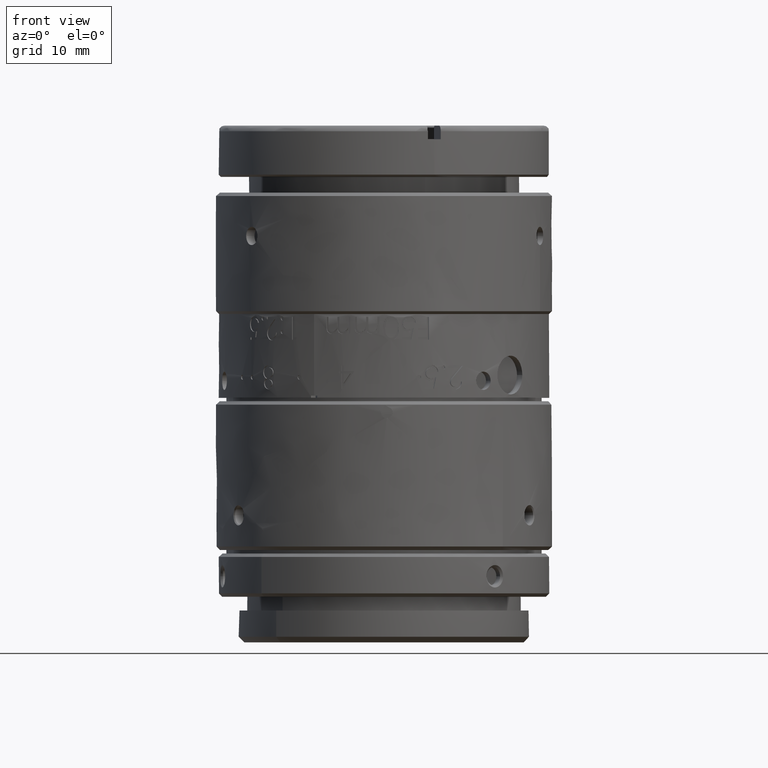
[diagram: clean part render]
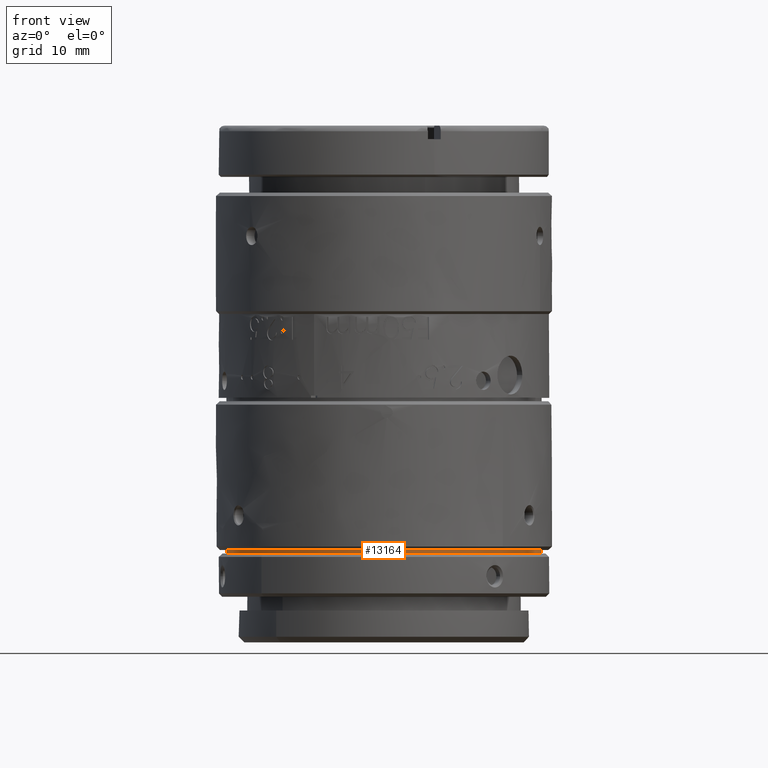
[diagram: same view with one face highlighted and labeled with its STEP entity id]
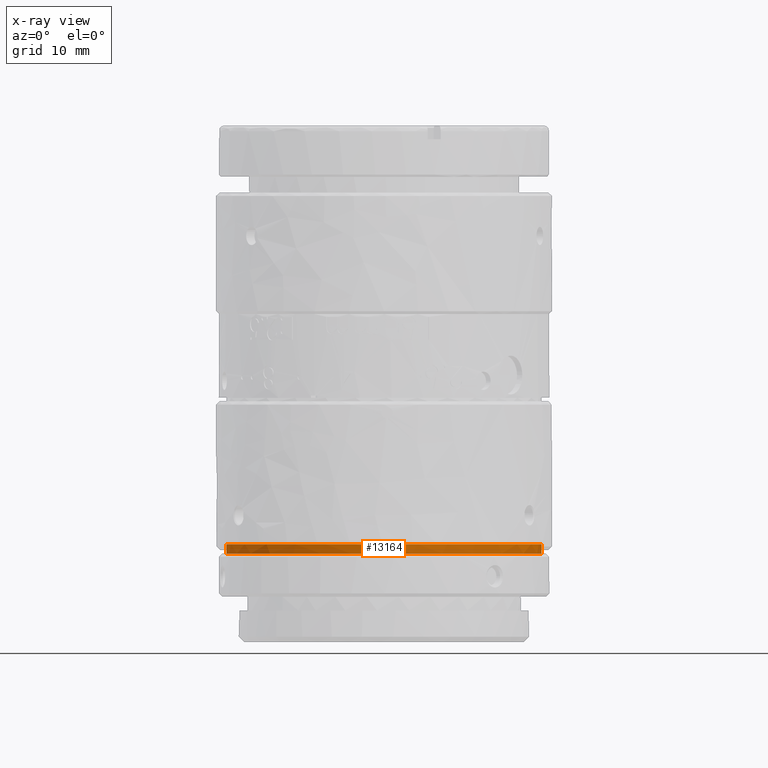
[diagram: x-ray of the same camera — body ghosted, the highlighted face saturated]
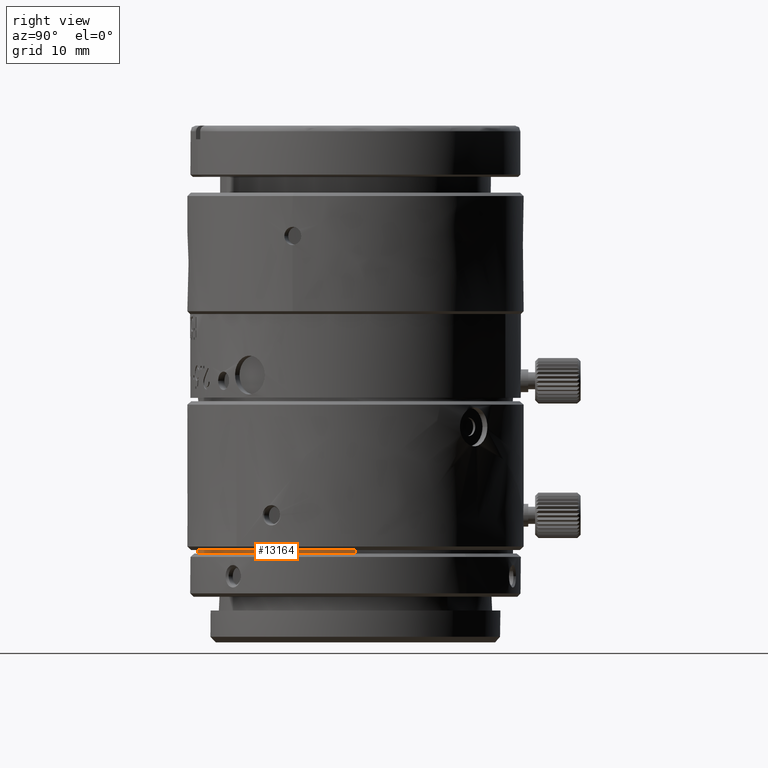
[diagram: same view with one face highlighted and labeled with its STEP entity id]
A machine part, front view. The second image highlights one B-rep face of the part: STEP entity #13164.
The next image is the same camera in x-ray: the body ghosted, the highlighted face saturated — about 0% of this face is hidden behind the body in this view.
A second angle (right view) of the same face is appended — the face is thin or edge-on in the first view.
In plain terms, the highlighted face is a freeform B-spline surface patch.
Its self-contained STEP definition (entity closure, byte-faithful):
#589 = CARTESIAN_POINT ( 'NONE',  ( 13.82029815274901097, -1.810527232057803637, -13.03400299199999957 ) ) ;
#1340 = CARTESIAN_POINT ( 'NONE',  ( -13.82029810966163907, -27.64059623633080776, -12.22400299199999907 ) ) ;
#1531 = CARTESIAN_POINT ( 'NONE',  ( 13.82029812100000044, -3.384996772072244681E-15, -12.22400299200000084 ) ) ;
#1917 = FACE_OUTER_BOUND ( 'NONE', #32240, .T. ) ;
#2273 = CARTESIAN_POINT ( 'NONE',  ( -13.82029811722807899, -3.779454036961450059E-09, -12.22400299200000084 ) ) ;
#2752 = CARTESIAN_POINT ( 'NONE',  ( 12.07543183483454463, -6.961508158523174394, -13.03400299199999957 ) ) ;
#2937 = CARTESIAN_POINT ( 'NONE',  ( 6.961508207770102707, -12.07543176813295993, -13.03400299200000134 ) ) ;
#3374 = CARTESIAN_POINT ( 'NONE',  ( 1.810527232621758520, -13.82029816311509407, -12.22400299200000084 ) ) ;
#4543 = CARTESIAN_POINT ( 'NONE',  ( 13.82029811929229979, -1.353493768880836097E-09, -13.03400299200000134 ) ) ;
#5352 = CARTESIAN_POINT ( 'NONE',  ( 13.82029811722807899, -8.273123845374130825E-10, -12.22400299200000084 ) ) ;
#6475 = CARTESIAN_POINT ( 'NONE',  ( 8.492190455409788896, -11.05266258910301325, -12.22400299200000084 ) ) ;
#7037 = CARTESIAN_POINT ( 'NONE',  ( 13.46114929263155702, -3.616090095877642963, -12.22400299200000084 ) ) ;
#7269 = B_SPLINE_CURVE_WITH_KNOTS ( 'NONE', 1,
 ( #29885, #34988 ),
 .UNSPECIFIED., .F., .F.,
 ( 2, 2 ),
 ( -1.000000000000000000, 0.0000000000000000000 ),
 .UNSPECIFIED. ) ;
#7349 = CARTESIAN_POINT ( 'NONE',  ( 13.82029812099999333, -27.64059623066163240, -12.22400299199999907 ) ) ;
#8725 = B_SPLINE_CURVE_WITH_KNOTS ( 'NONE', 3,
 ( #13068, #24501, #21219, #19054, #9960, #27790, #21783, #12501, #15406, #3374, #30323, #9583, #6475, #36331, #36712, #7037, #9770, #18865 ),
 .UNSPECIFIED., .F., .F.,
 ( 4, 2, 2, 2, 2, 2, 2, 2, 4 ),
 ( 3.141592653589795336, 3.534291735288519920, 3.926990816987244060, 4.319689898685968643, 4.712388980384693227, 5.105088062083417810, 5.497787143782142394, 5.890486225480866089, 6.283185307179590673 ),
 .UNSPECIFIED. ) ;
#9583 = CARTESIAN_POINT ( 'NONE',  ( 6.961508146707862110, -12.07543175754245723, -12.22400299200000084 ) ) ;
#9591 = ORIENTED_EDGE ( 'NONE', *, *, #32176, .F. ) ;
#9770 = CARTESIAN_POINT ( 'NONE',  ( 13.82029816311509940, -1.810527232621692129, -12.22400299200000084 ) ) ;
#9903 = CARTESIAN_POINT ( 'NONE',  ( -13.82029812100000044, -5.669181055442177571E-09, -12.22400299200000084 ) ) ;
#9960 = CARTESIAN_POINT ( 'NONE',  ( -11.05266258910302390, -8.492190455409778238, -12.22400299200000084 ) ) ;
#10030 = CARTESIAN_POINT ( 'NONE',  ( 13.82029811722807899, -8.273123845374130825E-10, -12.22400299200000084 ) ) ;
#10654 = B_SPLINE_CURVE_WITH_KNOTS ( 'NONE', 3,
 ( #26416, #589, #35329, #2752, #14593, #14967, #2937, #24075, #12447, #26794, #14771, #17693, #36083, #32801, #21353, #33170, #17502, #12074 ),
 .UNSPECIFIED., .F., .F.,
 ( 4, 2, 2, 2, 2, 2, 2, 2, 4 ),
 ( 0.0000000000000000000, 0.3926990816987244171, 0.7853981633974488341, 1.178097245096173307, 1.570796326794897668, 1.963495408493622030, 2.356194490192346613, 2.748893571891070753, 3.141592653589795336 ),
 .UNSPECIFIED. ) ;
#10861 = ORIENTED_EDGE ( 'NONE', *, *, #33290, .F. ) ;
#12074 = CARTESIAN_POINT ( 'NONE',  ( -13.82029811929229979, -3.253272652618029837E-09, -13.03400299200000134 ) ) ;
#12204 = CARTESIAN_POINT ( 'NONE',  ( 13.82029811929229979, -1.353493768880836097E-09, -13.03400299200000134 ) ) ;
#12447 = CARTESIAN_POINT ( 'NONE',  ( 1.810527228900692398, -13.82029807900481266, -13.03400299200000312 ) ) ;
#12501 = CARTESIAN_POINT ( 'NONE',  ( -3.616090095877700694, -13.46114929263153037, -12.22400299200000084 ) ) ;
#13068 = CARTESIAN_POINT ( 'NONE',  ( -13.82029811722807899, -3.779454036961450059E-09, -12.22400299200000084 ) ) ;
#13164 = ADVANCED_FACE ( 'NONE', ( #1917 ), #13205, .F. ) ;
#13205 =( BOUNDED_SURFACE ( )  B_SPLINE_SURFACE ( 1, 3, ( 
 ( #22095, #27920, #31201, #33923 ),
 ( #9903, #1340, #7349, #1531 ) ),
 .UNSPECIFIED., .F., .F., .T. ) 
 B_SPLINE_SURFACE_WITH_KNOTS ( ( 2, 2 ),
 ( 4, 4 ),
 ( 0.0000000000000000000, 1.000000000000000000 ),
 ( 0.0000000000000000000, 1.000000000000000000 ),
 .UNSPECIFIED. ) 
 GEOMETRIC_REPRESENTATION_ITEM ( )  RATIONAL_B_SPLINE_SURFACE ( (
 ( 1.000000000000000000, 0.3333333334700690487, 0.3333333334700690487, 1.000000000000000000),
 ( 1.000000000000000000, 0.3333333334700690487, 0.3333333334700690487, 1.000000000000000000) ) ) 
 REPRESENTATION_ITEM ( '' )  SURFACE ( )  );
#14189 = EDGE_CURVE ( 'NONE', #26625, #36512, #26790, .T. ) ;
#14593 = CARTESIAN_POINT ( 'NONE',  ( 11.05266263453508380, -8.492190449468209223, -13.03400299200000312 ) ) ;
#14771 = CARTESIAN_POINT ( 'NONE',  ( -3.616090073571344821, -13.46114929000522409, -13.03400299200000134 ) ) ;
#14967 = CARTESIAN_POINT ( 'NONE',  ( 8.492190406667322833, -11.05266259037469112, -13.03400299200000134 ) ) ;
#15406 = CARTESIAN_POINT ( 'NONE',  ( -1.810527232621759186, -13.82029805625335150, -12.22400299200000084 ) ) ;
#17502 = CARTESIAN_POINT ( 'NONE',  ( -13.82029807900481089, -1.810527228900635333, -13.03400299200000312 ) ) ;
#17693 = CARTESIAN_POINT ( 'NONE',  ( -6.961508158523217915, -12.07543183483453042, -13.03400299199999957 ) ) ;
#18865 = CARTESIAN_POINT ( 'NONE',  ( 13.82029811722807899, -8.273123845374130825E-10, -12.22400299200000084 ) ) ;
#19054 = CARTESIAN_POINT ( 'NONE',  ( -12.07543175754244480, -6.961508146707898526, -12.22400299199999552 ) ) ;
#19360 = EDGE_CURVE ( 'NONE', #21463, #30980, #7269, .T. ) ;
#21219 = CARTESIAN_POINT ( 'NONE',  ( -13.46114939949325162, -3.616090095877774413, -12.22400299200000262 ) ) ;
#21311 = CARTESIAN_POINT ( 'NONE',  ( -13.82029811929229979, -3.253272652618029837E-09, -13.03400299200000134 ) ) ;
#21353 = CARTESIAN_POINT ( 'NONE',  ( -12.07543176813294750, -6.961508207770135570, -13.03400299199999957 ) ) ;
#21463 = VERTEX_POINT ( 'NONE', #21311 ) ;
#21783 = CARTESIAN_POINT ( 'NONE',  ( -6.961508146707974909, -12.07543186440416960, -12.22400299200000084 ) ) ;
#22095 = CARTESIAN_POINT ( 'NONE',  ( -13.82029812100000044, -5.669181055442177571E-09, -13.03400299200000134 ) ) ;
#22106 = ORIENTED_EDGE ( 'NONE', *, *, #14189, .F. ) ;
#24075 = CARTESIAN_POINT ( 'NONE',  ( 3.616090063069149707, -13.46114935767442411, -13.03400299199999957 ) ) ;
#24501 = CARTESIAN_POINT ( 'NONE',  ( -13.82029816311509407, -1.810527232621709892, -12.22400299200000262 ) ) ;
#24944 = ORIENTED_EDGE ( 'NONE', *, *, #19360, .F. ) ;
#26416 = CARTESIAN_POINT ( 'NONE',  ( 13.82029811929229979, -1.353493768880836097E-09, -13.03400299200000134 ) ) ;
#26625 = VERTEX_POINT ( 'NONE', #5352 ) ;
#26790 = B_SPLINE_CURVE_WITH_KNOTS ( 'NONE', 1,
 ( #10030, #12204 ),
 .UNSPECIFIED., .F., .F.,
 ( 2, 2 ),
 ( -1.000000000000000000, 0.0000000000000000000 ),
 .UNSPECIFIED. ) ;
#26794 = CARTESIAN_POINT ( 'NONE',  ( -1.810527232057781211, -13.82029815274901097, -13.03400299200000134 ) ) ;
#27790 = CARTESIAN_POINT ( 'NONE',  ( -8.492190455409776462, -11.05266258910302213, -12.22400299200000084 ) ) ;
#27920 = CARTESIAN_POINT ( 'NONE',  ( -13.82029810966163907, -27.64059623633080776, -13.03400299199999957 ) ) ;
#29885 = CARTESIAN_POINT ( 'NONE',  ( -13.82029811929229979, -3.253272652618029837E-09, -13.03400299200000134 ) ) ;
#30323 = CARTESIAN_POINT ( 'NONE',  ( 3.616090095877809940, -13.46114939949323031, -12.22400299200000084 ) ) ;
#30980 = VERTEX_POINT ( 'NONE', #2273 ) ;
#31201 = CARTESIAN_POINT ( 'NONE',  ( 13.82029812099999333, -27.64059623066163240, -13.03400299199999957 ) ) ;
#32176 = EDGE_CURVE ( 'NONE', #36512, #21463, #10654, .T. ) ;
#32240 = EDGE_LOOP ( 'NONE', ( #9591, #22106, #10861, #24944 ) ) ;
#32801 = CARTESIAN_POINT ( 'NONE',  ( -11.05266259037471421, -8.492190406667301517, -13.03400299199999957 ) ) ;
#33170 = CARTESIAN_POINT ( 'NONE',  ( -13.46114935767443654, -3.616090063069112404, -13.03400299199999957 ) ) ;
#33290 = EDGE_CURVE ( 'NONE', #30980, #26625, #8725, .T. ) ;
#33923 = CARTESIAN_POINT ( 'NONE',  ( 13.82029812100000044, -3.384996772072244681E-15, -13.03400299200000134 ) ) ;
#34988 = CARTESIAN_POINT ( 'NONE',  ( -13.82029811722807899, -3.779454036961450059E-09, -12.22400299200000084 ) ) ;
#35329 = CARTESIAN_POINT ( 'NONE',  ( 13.46114929000520988, -3.616090073571387453, -13.03400299200000489 ) ) ;
#36083 = CARTESIAN_POINT ( 'NONE',  ( -8.492190449468191460, -11.05266263453510334, -13.03400299200000312 ) ) ;
#36331 = CARTESIAN_POINT ( 'NONE',  ( 11.05266258910301325, -8.492190455409788896, -12.22400299200000084 ) ) ;
#36512 = VERTEX_POINT ( 'NONE', #4543 ) ;
#36712 = CARTESIAN_POINT ( 'NONE',  ( 12.07543186440413940, -6.961508146708031752, -12.22400299200000084 ) ) ;